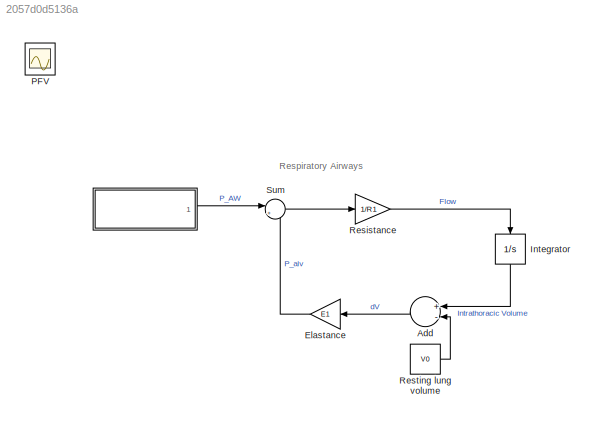
MODEL slx_2057d0d5136a
KIND model
CONFIG AbsTol = auto
CONFIG EnableMultiTasking = off
CONFIG FixedStep = auto
CONFIG MaxStep = auto
CONFIG MinStep = auto
CONFIG RelTol = 1e-3
CONFIG SampleTimeConstraint = Unconstrained
CONFIG Solver = VariableStepAuto
CONFIG SolverName = VariableStepAuto
CONFIG StartTime = 0.0
CONFIG StopTime = T
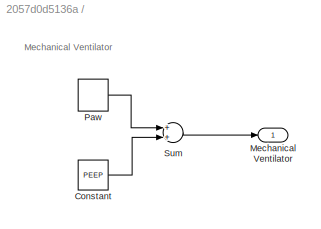
BLOCK [SubSystem]  
  Ports = [0, 1]
  RequestExecContextInheritance = off
BLOCK [Constant]  /Constant
  SampleTime = 0.1
  Value = PEEP
BLOCK [Outport]  /Mechanical Ventilator 
  IconDisplay = Port number
  VectorParamsAs1DForOutWhenUnconnected = off
BLOCK [DiscretePulseGenerator]  /Paw
  Amplitude = Pcontrol
  Period = breath
  PhaseDelay = 2
  Ports = [0, 1]
  PulseType = Time based
  PulseWidth = insptime
  SampleTime = 0.1
BLOCK [Sum]  /Sum
  InputSameDT = off
  OutDataTypeStr = Inherit: Inherit via internal rule
  Ports = [2, 1]
  SaturateOnIntegerOverflow = off
BLOCK [Sum] Add
  InputSameDT = off
  Inputs = +-
  OutDataTypeStr = Inherit: Inherit via internal rule
  Ports = [2, 1]
  SaturateOnIntegerOverflow = off
BLOCK [Gain] Elastance
  Gain = E1
  OutDataTypeStr = Inherit: Inherit via internal rule
  ParamDataTypeStr = Inherit: Inherit via internal rule
  SaturateOnIntegerOverflow = off
BLOCK [Integrator] Integrator
  Ports = [1, 1]
  ZeroCross = off
BLOCK [Scope] PFV
  Floating = off
  IOType = viewer
  NumInputPorts = 1
  Ports = []
  ScopeSpecificationString = Simulink.scopes.TimeScopeBlockCfg('CurrentConfiguration', extmgr.ConfigurationSet(extmgr.Configuration('Core','General UI',true,'FigureColor',[1 1 1]),extmgr.Configuration('Core','Source UI',true),extmgr.Configuration('Sources','WiredSimulink',true,'DataLoggingVariableName','ScopeData1'),extmgr.Configuration('Visuals','Time Domain',true,'SerializedDisplays',{struct('MinYLimReal','4.375','MaxYLimRe...<+3557ch>
BLOCK [Gain] Resistance
  Gain = 1/R1
  OutDataTypeStr = Inherit: Inherit via internal rule
  ParamDataTypeStr = Inherit: Inherit via internal rule
  SaturateOnIntegerOverflow = off
BLOCK [Constant] Resting lung volume
  Value = V0
BLOCK [Sum] Sum
  IconShape = round
  InputSameDT = off
  Inputs = |+-
  OutDataTypeStr = Inherit: Inherit via internal rule
  Ports = [2, 1]
  SaturateOnIntegerOverflow = off
ANNOTATION (root): Lung
ANNOTATION (root): Respiratory Airways
ANNOTATION  : Mechanical Ventilator
LINE  /Constant:1 ->  /Sum:2
LINE  /Paw:1 ->  /Sum:1
LINE  /Sum:1 ->  /Mechanical Ventilator :1
LINE  :1 -> Sum:1
LINE Add:1 -> Elastance:1
LINE Elastance:1 -> Sum:2
LINE Integrator:1 -> Add:1
LINE Resistance:1 -> Integrator:1
LINE Resting lung volume:1 -> Add:2
LINE Sum:1 -> Resistance:1
